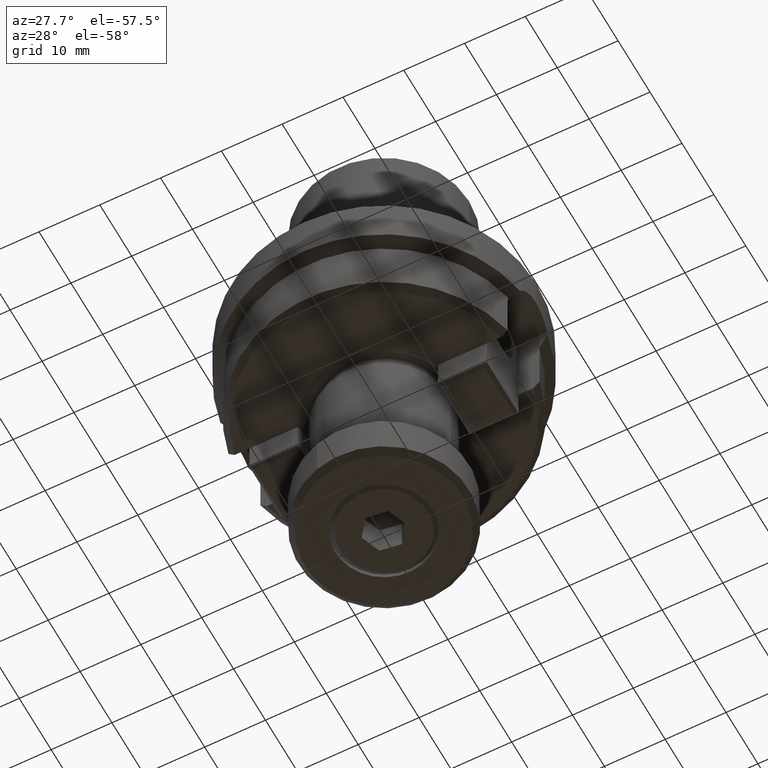
[diagram: clean part render]
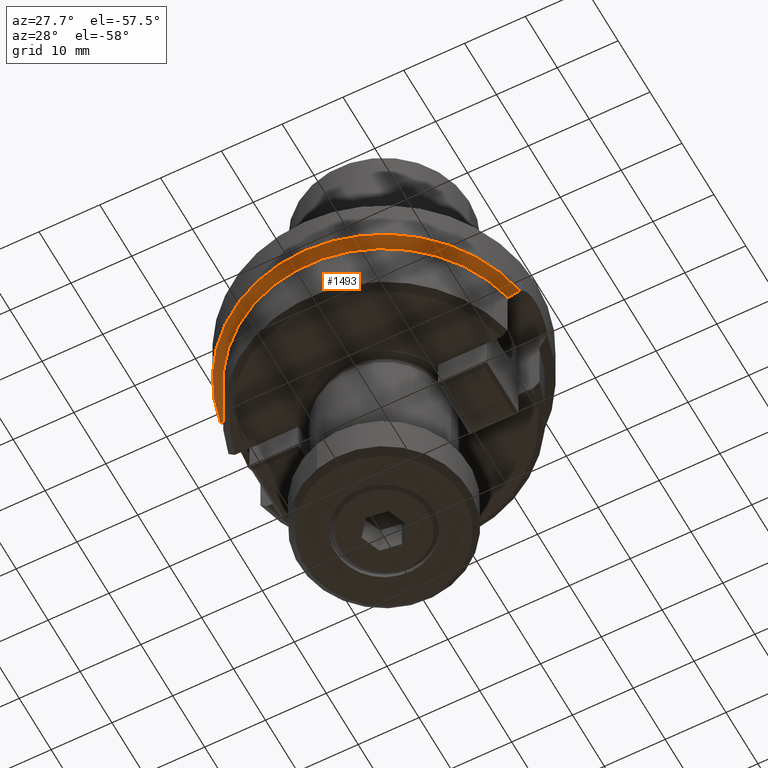
[diagram: same view with one face highlighted and labeled with its STEP entity id]
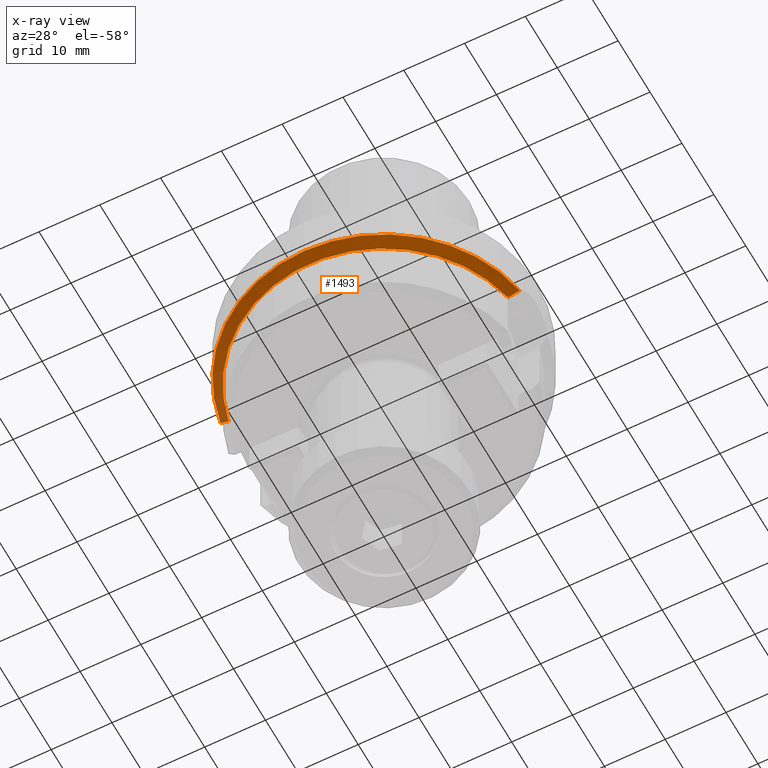
[diagram: x-ray of the same camera — body ghosted, the highlighted face saturated]
A machine part, auxiliary view. The second image highlights one B-rep face of the part: STEP entity #1493.
The next image is the same camera in x-ray: the body ghosted, the highlighted face saturated — about 1% of this face is hidden behind the body in this view.
In plain terms, the highlighted conical surface has half-angle 45 deg.
Its self-contained STEP definition (entity closure, byte-faithful):
#1287=VERTEX_POINT('NONE',#3448);
#1493=ADVANCED_FACE('NONE',(#3680),#3681,.T.);
#1843=VERTEX_POINT('NONE',#4067);
#2717=EDGE_CURVE('NONE',#1287,#2851,#5049,.T.);
#2821=VERTEX_POINT('NONE',#5164);
#2851=VERTEX_POINT('NONE',#5197);
#2965=EDGE_CURVE('NONE',#2821,#2851,#5323,.T.);
#3065=EDGE_CURVE('NONE',#1843,#2821,#5430,.T.);
#3171=EDGE_CURVE('NONE',#1843,#1287,#5549,.T.);
#3448=CARTESIAN_POINT('',(24.6221445044903,-4.3301270189222,-8.50000000000001));
#3680=FACE_OUTER_BOUND('',#6355,.T.);
#3681=CONICAL_SURFACE('',#6356,23.5,0.785398163397449);
#4067=CARTESIAN_POINT('',(-24.6221445044903,-4.3301270189222,-8.50000000000001));
#5049=B_SPLINE_CURVE_WITH_KNOTS('',3,(#8801,#8802,#8803,#8804),.UNSPECIFIED.,.F.,.F.,(4,4),(3.19085248281333E-007,0.00229337964287522),.UNSPECIFIED.);
#5164=CARTESIAN_POINT('',(-22.9836898691223,-4.8989794855668,-9.99999999999955));
#5197=CARTESIAN_POINT('',(22.9836898691223,-4.8989794855668,-9.99999999999955));
#5323=CIRCLE('',#9225,23.5);
#5430=B_SPLINE_CURVE_WITH_KNOTS('',3,(#9381,#9382,#9383,#9384),.UNSPECIFIED.,.F.,.F.,(4,4),(3.19085248281333E-007,0.00229337964287522),.UNSPECIFIED.);
#5549=CIRCLE('',#9638,25.0);
#6355=EDGE_LOOP('',(#10295,#10296,#10297,#10298));
#6356=AXIS2_PLACEMENT_3D('',#10299,#10300,#10301);
#8801=CARTESIAN_POINT('',(24.6221445044903,-4.3301270189222,-8.50000000000001));
#8802=CARTESIAN_POINT('',(24.087054263402,-4.6067317378945,-8.97909342687336));
#8803=CARTESIAN_POINT('',(23.5393030767011,-4.79258463510028,-9.47877381019683));
#8804=CARTESIAN_POINT('',(22.9836898691223,-4.8989794855668,-9.99999999999955));
#9225=AXIS2_PLACEMENT_3D('',#12253,#12254,#12255);
#9381=CARTESIAN_POINT('',(-24.6221445044903,-4.3301270189222,-8.50000000000001));
#9382=CARTESIAN_POINT('',(-24.087054263402,-4.6067317378945,-8.97909342687336));
#9383=CARTESIAN_POINT('',(-23.5393030767011,-4.79258463510028,-9.47877381019683));
#9384=CARTESIAN_POINT('',(-22.9836898691223,-4.8989794855668,-9.99999999999955));
#9638=AXIS2_PLACEMENT_3D('',#12504,#12505,#12506);
#10295=ORIENTED_EDGE('',*,*,#3171,.F.);
#10296=ORIENTED_EDGE('',*,*,#3065,.T.);
#10297=ORIENTED_EDGE('',*,*,#2965,.T.);
#10298=ORIENTED_EDGE('',*,*,#2717,.F.);
#10299=CARTESIAN_POINT('',(0.0,0.0,-10.0));
#10300=DIRECTION('',(-0.0,-0.0,1.0));
#10301=DIRECTION('',(1.0,0.0,0.0));
#12253=CARTESIAN_POINT('',(0.0,0.0,-10.0));
#12254=DIRECTION('',(0.0,0.0,1.0));
#12255=DIRECTION('',(1.0,0.0,0.0));
#12504=CARTESIAN_POINT('',(0.0,0.0,-8.50000000000001));
#12505=DIRECTION('',(0.0,0.0,1.0));
#12506=DIRECTION('',(1.0,0.0,0.0));